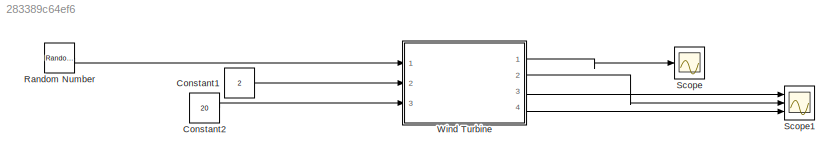
MODEL slx_283389c64ef6
KIND model
CONFIG AbsTol = auto
CONFIG EnableMultiTasking = off
CONFIG FixedStep = auto
CONFIG MaxStep = auto
CONFIG MinStep = auto
CONFIG RelTol = 1e-3
CONFIG SampleTimeConstraint = Unconstrained
CONFIG SolverName = VariableStepAuto
CONFIG StartTime = 0.0
CONFIG StopTime = 10.0
BLOCK [Constant] Constant1
  Value = 2
BLOCK [Constant] Constant2
  Value = 20
BLOCK [RandomNumber] Random Number
  Mean = 12
  SampleTime = 0.1
BLOCK [Scope] Scope
  Floating = off
  NumInputPorts = 1
  Ports = [1]
  ScopeSpecificationString = Simulink.scopes.TimeScopeBlockCfg('CurrentConfiguration', extmgr.ConfigurationSet(extmgr.Configuration('Core','General UI',true),extmgr.Configuration('Core','Source UI',true),extmgr.Configuration('Sources','WiredSimulink',true,'DataLoggingVariableName','ScopeData1'),extmgr.Configuration('Visuals','Time Domain',true,'SerializedDisplays',{struct('MinYLimReal','-2.7180062','MaxYLimReal','-2.7179993',...<+1455ch>
BLOCK [Scope] Scope1
  Floating = off
  NumInputPorts = 3
  Ports = [3]
  ScopeSpecificationString = Simulink.scopes.TimeScopeBlockCfg('CurrentConfiguration', extmgr.ConfigurationSet(extmgr.Configuration('Core','General UI',true),extmgr.Configuration('Core','Source UI',true),extmgr.Configuration('Sources','WiredSimulink',true),extmgr.Configuration('Visuals','Time Domain',true,'SerializedDisplays',{struct('MinYLimReal','0.4923','MaxYLimReal','0.80164','YLabelReal','','MinYLimMag','0.4923','MaxYLim...<+2073ch>
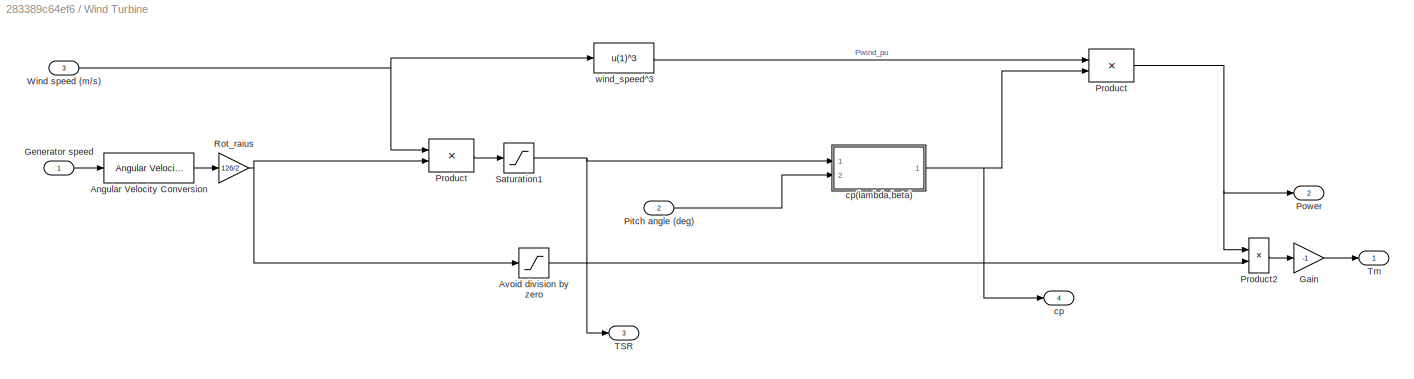
BLOCK [SubSystem] Wind Turbine
  AncestorBlock = spsWindTurbineLib/Wind Turbine
  DialogController = POWERSYS.PowerSysDialog
  OpenFcn = sps_rtmsupport('OpenFcn',gcbh)
  Ports = [3, 4]
  RequestExecContextInheritance = off
BLOCK [Reference] Wind Turbine/Angular Velocity Conversion  REF=aerolibconvert2/Angular Velocity
Conversion
  Ports = [1, 1]
  SourceBlock = aerolibconvert2/Angular Velocity\nConversion
  SourceProductBaseCode = AE
  SourceType = Angular Velocity Conversion
BLOCK [Saturate] Wind Turbine/Avoid division by zero
  LowerLimit = 1e-6
  UpperLimit = 1e6
BLOCK [Gain] Wind Turbine/Gain
  Gain = -1
  OutDataTypeStr = Inherit: Same as input
  ParamDataTypeStr = Inherit: Same as input
  SaturateOnIntegerOverflow = on
BLOCK [Inport] Wind Turbine/Generator speed
BLOCK [Inport] Wind Turbine/Pitch angle (deg)
  Port = 2
BLOCK [Outport] Wind Turbine/Power
  Port = 2
BLOCK [Product] Wind Turbine/Product
  Inputs = /*
  OutDataTypeStr = Inherit: Same as first input
  Ports = [2, 1]
  SaturateOnIntegerOverflow = on
BLOCK [Product] Wind Turbine/Product 
  OutDataTypeStr = Inherit: Same as first input
  Ports = [2, 1]
  SaturateOnIntegerOverflow = on
BLOCK [Product] Wind Turbine/Product2
  InputSameDT = on
  Inputs = */
  OutDataTypeStr = Inherit: Same as first input
  Ports = [2, 1]
  SaturateOnIntegerOverflow = on
BLOCK [Gain] Wind Turbine/Rot_raius
  Gain = 126/2
BLOCK [Saturate] Wind Turbine/Saturation1
  LowerLimit = 1e-6
  UpperLimit = inf
BLOCK [Outport] Wind Turbine/TSR
  Port = 3
BLOCK [Outport] Wind Turbine/Tm 
  VectorParamsAs1DForOutWhenUnconnected = off
BLOCK [Inport] Wind Turbine/Wind speed (m//s)
  Port = 3
BLOCK [Outport] Wind Turbine/cp
  Port = 4
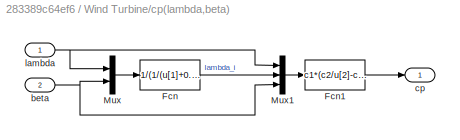
BLOCK [SubSystem] Wind Turbine/cp(lambda,beta)
  Ports = [2, 1]
  RequestExecContextInheritance = off
BLOCK [Fcn] Wind Turbine/cp(lambda,beta)/Fcn
  Expr = 1/(1/(u[1]+0.08*u[2])-0.035/(u[2]^3+1))
BLOCK [Fcn] Wind Turbine/cp(lambda,beta)/Fcn1
  Expr = c1*(c2/u[2]-c3*u[3]-c4)*exp(-c5/u[2])+c6*u[1]
BLOCK [Mux] Wind Turbine/cp(lambda,beta)/Mux
  DisplayOption = bar
  Inputs = 2
  Ports = [2, 1]
BLOCK [Mux] Wind Turbine/cp(lambda,beta)/Mux1
  DisplayOption = bar
  Inputs = 3
  Ports = [3, 1]
BLOCK [Inport] Wind Turbine/cp(lambda,beta)/beta
  Port = 2
BLOCK [Outport] Wind Turbine/cp(lambda,beta)/cp
  VectorParamsAs1DForOutWhenUnconnected = off
BLOCK [Inport] Wind Turbine/cp(lambda,beta)/lambda
BLOCK [Fcn] Wind Turbine/wind_speed^3
  Expr = u(1)^3
LINE Constant1:1 -> Wind Turbine:2
LINE Constant2:1 -> Wind Turbine:3
LINE Random Number:1 -> Wind Turbine:1
LINE Wind Turbine:1 -> Scope:1
LINE Wind Turbine:2 -> Scope1:2
LINE Wind Turbine:3 -> Scope1:1
LINE Wind Turbine:4 -> Scope1:3
